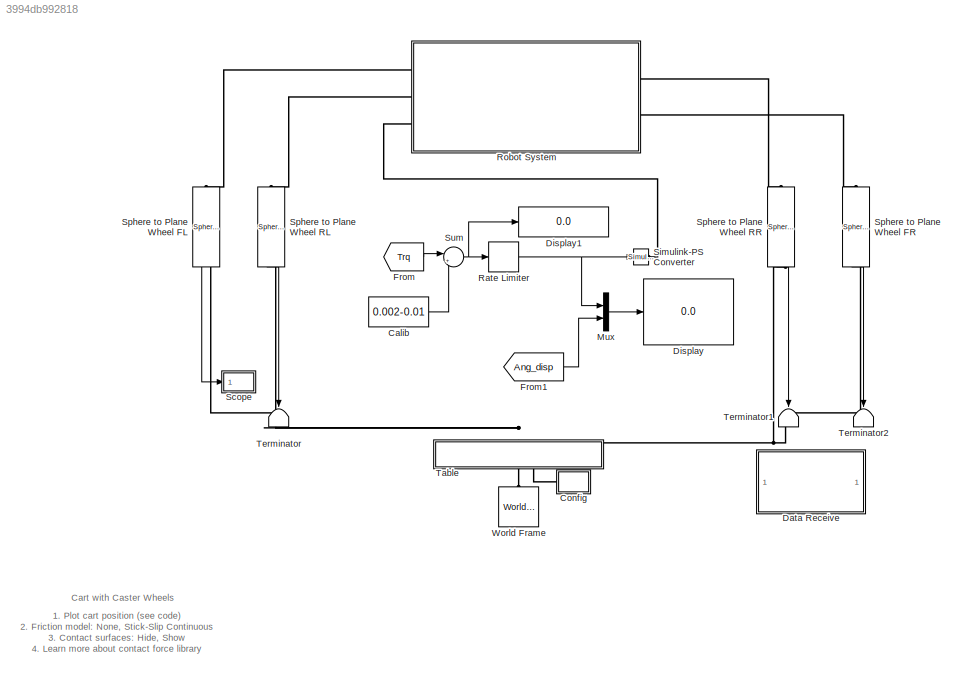
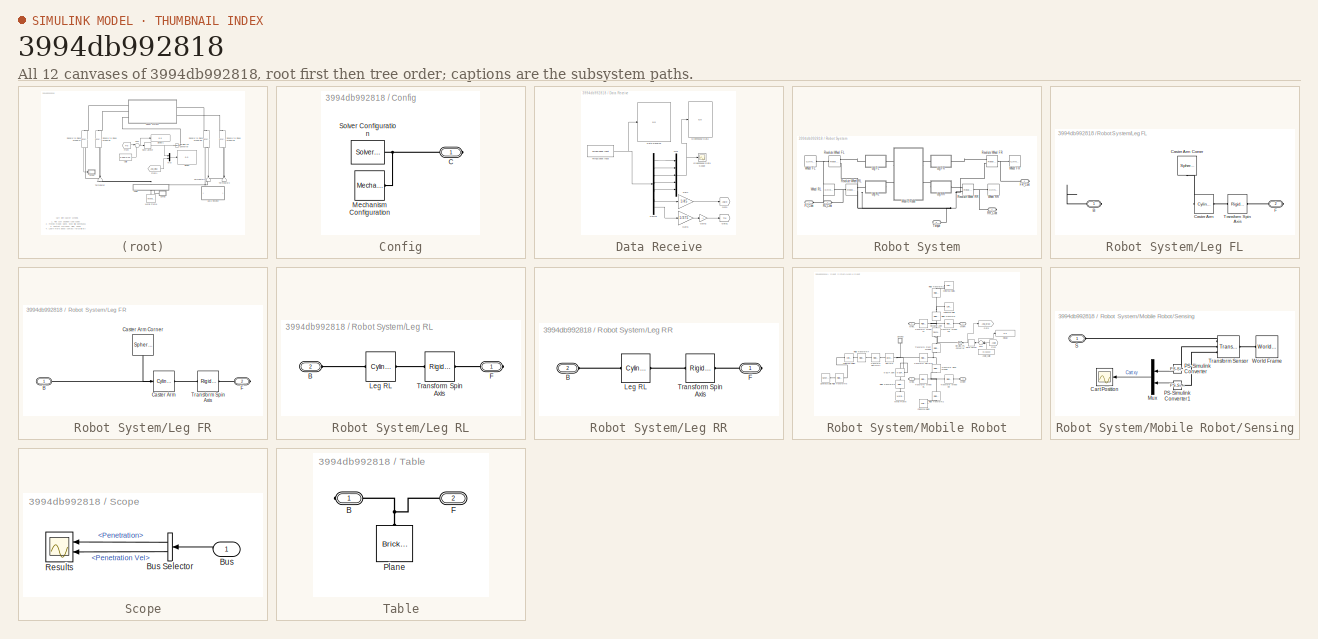
[diagram: thumbnail index - all 12 canvases of the model, root first then tree order]
MODEL slx_3994db992818
KIND model
CONFIG AbsTol = 1e-5
CONFIG EnableMultiTasking = on
CONFIG FixedStep = 1e-3
CONFIG MaxStep = 0.01
CONFIG MinStep = auto
CONFIG RelTol = 1e-4
CONFIG SampleTimeConstraint = Unconstrained
CONFIG SolverName = ode23t
CONFIG StartFcn = tic;
CONFIG StartTime = 0.0
CONFIG StopFcn = Elapsed_Sim_Time = toc;\ndisp(['Elapsed Sim Time = ' num2str(Elapsed_Sim_Time)]);\n
CONFIG StopTime = inf
WORKSPACE source: MATLAB code (in-file)
WORKSPACE code: whl.rad = 0.125;
WORKSPACE code: whl.thickness = 0.057;
WORKSPACE code: axle.length = 0.2;
WORKSPACE code: axle.radius = 0.005;
WORKSPACE code: platform.width = 0.265;
WORKSPACE code: platform.length = 0.435;
WORKSPACE code: platform.thickness = 0.28;
WORKSPACE code: platform.offset = 0.137;
WORKSPACE code: caster_axis.rad = 0.025;
WORKSPACE code: caster_axis.length = 0.2;
WORKSPACE code: bumper.rad = platform.offset+whl.rad;
WORKSPACE code: table.length = 30;
WORKSPACE code: table.thickness = 0.01;
WORKSPACE code: tableWhl.contact.k = 5000;
WORKSPACE code: tableWhl.contact.b = 700;
WORKSPACE code: steel.density = 8000; %kg/m^3
WORKSPACE code: start_pos.x = -0.2;
WORKSPACE code: start_pos.y = 1.0;
WORKSPACE l_whl_trq = [0 0 0 0.5 0 0 0 -0.5 1.0 0 0 0 -1.0 0.5 0 0 0 -0.5 -1.5 0 0 0 1.5].'*0.00005
WORKSPACE r_whl_trq = [0 0 0 2.0 0 0 0 -2.0 1.0 0 0 0 -1.0 1.0 0 0 0 -1.0 -1.5 0 0 0 1.5].'*0.00005
WORKSPACE muk = 0.7
WORKSPACE mus = 0.5
WORKSPACE vth = 1e-2  (= 0.01)
BLOCK [Constant] Calib
  Value = 0.002-0.01
BLOCK [SubSystem] Config
  Ports = [0, 0, 0, 0, 0, 0, 1]
  RequestExecContextInheritance = off
BLOCK [PMIOPort] Config/C
  Side = Right
BLOCK [Reference] Config/Mechanism Configuration  REF=sm_lib/Utilities/Mechanism
Configuration
  Ports = [0, 0, 0, 0, 0, 0, 1]
  SourceBlock = sm_lib/Utilities/Mechanism\nConfiguration
  SourceProductBaseCode = MS
  SourceType = Mechanism\nConfiguration
BLOCK [Reference] Config/Solver Configuration  REF=nesl_utility/Solver
Configuration
  Ports = [0, 0, 0, 0, 0, 0, 1]
  SourceBlock = nesl_utility/Solver\nConfiguration
  SourceProductBaseCode = SS,PW,VE
  SourceType = Solver\nConfiguration
BLOCK [SubSystem] Data Receive
  Ports = []
  RequestExecContextInheritance = off
BLOCK [Display] Data Receive/Data Receive
  Decimation = 1
  Ports = [1]
BLOCK [Demux] Data Receive/Demux
  Outputs = 7
  Ports = [1, 7]
BLOCK [Gain] Data Receive/Gain
  Gain = 1/45
BLOCK [Gain] Data Receive/Gain1
  Gain = 1/375
BLOCK [Gain] Data Receive/Gain2
  Gain = -1
BLOCK [Goto] Data Receive/Goto
  GotoTag = Angle
  TagVisibility = global
BLOCK [Goto] Data Receive/Goto1
  GotoTag = Trq
  TagVisibility = global
BLOCK [Display] Data Receive/Greenhouse Data
  Decimation = 1
  Ports = [1]
BLOCK [Scope] Data Receive/Greenhouse Data Scope
  Floating = off
  NumInputPorts = 1
  Ports = [1]
  ScopeSpecificationString = Simulink.scopes.TimeScopeBlockCfg('CurrentConfiguration', extmgr.ConfigurationSet(extmgr.Configuration('Core','General UI',true),extmgr.Configuration('Core','Source UI',true),extmgr.Configuration('Sources','WiredSimulink',true,'DataLoggingVariableName','ScopeData1'),extmgr.Configuration('Visuals','Time Domain',true,'SerializedDisplays',{struct('MinYLimReal','-9199.375','MaxYLimReal','1304.375','YL...<+1416ch>
BLOCK [Mux] Data Receive/Mux
  DisplayOption = bar
  Inputs = 5
  Ports = [5, 1]
BLOCK [Reference] Data Receive/ThingSpeak Input  REF=sldrtlib/Internet of Things/ThingSpeak Input
  Ports = [0, 1]
  SourceBlock = sldrtlib/Internet of Things/ThingSpeak Input
  SourceProductBaseCode = WT
  SourceType = Simulink Desktop Real-Time ThingSpeak Input
BLOCK [Display] Display
  Decimation = 1
  Ports = [1]
BLOCK [Display] Display1
  Decimation = 1
  Ports = [1]
BLOCK [From] From
  GotoTag = Trq
  TagVisibility = global
BLOCK [From] From1
  GotoTag = Ang_disp
  TagVisibility = global
BLOCK [Mux] Mux
  DisplayOption = bar
  Inputs = 2
  Ports = [2, 1]
BLOCK [RateLimiter] Rate Limiter
  FallingSlewLimit = -1*0.00005
  RisingSlewLimit = 1*0.00005
  SampleTimeMode = inherited
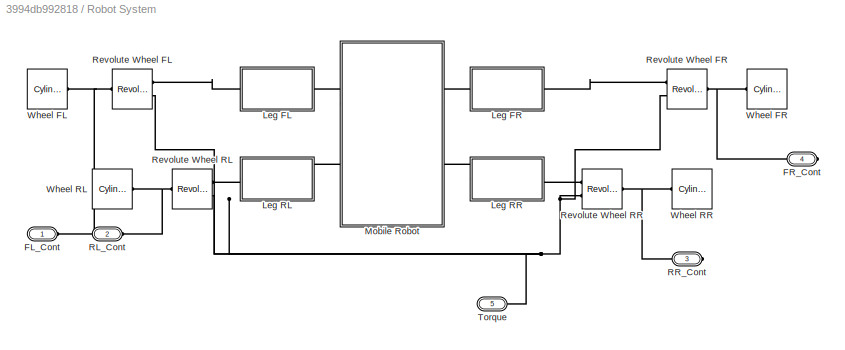
BLOCK [SubSystem] Robot System
  Ports = [0, 0, 0, 0, 0, 3, 2]
  RequestExecContextInheritance = off
BLOCK [PMIOPort] Robot System/FL_Cont
  Side = Left
BLOCK [PMIOPort] Robot System/FR_Cont
  NameLocation = top
  Port = 4
  Side = Right
BLOCK [SubSystem] Robot System/Leg FL
  Ports = [0, 0, 0, 0, 0, 1, 1]
  RequestExecContextInheritance = off
BLOCK [PMIOPort] Robot System/Leg FL/B
  Side = Left
BLOCK [Reference] Robot System/Leg FL/Caster Arm  REF=sm_lib/Body Elements/Cylindrical Solid
  Ports = [0, 0, 0, 0, 0, 1, 1]
  SourceBlock = sm_lib/Body Elements/Cylindrical Solid
  SourceProductBaseCode = MS
  SourceType = Cylindrical Solid
BLOCK [Reference] Robot System/Leg FL/Caster Arm Corner  REF=sm_lib/Body Elements/Spherical Solid
  NameLocation = left
  Ports = [0, 0, 0, 0, 0, 0, 1]
  SourceBlock = sm_lib/Body Elements/Spherical Solid
  SourceProductBaseCode = MS
  SourceType = Spherical Solid
BLOCK [PMIOPort] Robot System/Leg FL/F
  Port = 2
  Side = Right
BLOCK [Reference] Robot System/Leg FL/Transform Spin Axis  REF=sm_lib/Frames and
Transforms/Rigid
Transform
  Ports = [0, 0, 0, 0, 0, 1, 1]
  SourceBlock = sm_lib/Frames and\nTransforms/Rigid\nTransform
  SourceProductBaseCode = MS
  SourceType = Rigid\nTransform
BLOCK [SubSystem] Robot System/Leg FR
  Ports = [0, 0, 0, 0, 0, 1, 1]
  RequestExecContextInheritance = off
BLOCK [PMIOPort] Robot System/Leg FR/B
  Side = Left
BLOCK [Reference] Robot System/Leg FR/Caster Arm  REF=sm_lib/Body Elements/Cylindrical Solid
  Ports = [0, 0, 0, 0, 0, 1, 1]
  SourceBlock = sm_lib/Body Elements/Cylindrical Solid
  SourceProductBaseCode = MS
  SourceType = Cylindrical Solid
BLOCK [Reference] Robot System/Leg FR/Caster Arm Corner  REF=sm_lib/Body Elements/Spherical Solid
  NameLocation = left
  Ports = [0, 0, 0, 0, 0, 0, 1]
  SourceBlock = sm_lib/Body Elements/Spherical Solid
  SourceProductBaseCode = MS
  SourceType = Spherical Solid
BLOCK [PMIOPort] Robot System/Leg FR/F
  Port = 2
  Side = Right
BLOCK [Reference] Robot System/Leg FR/Transform Spin Axis  REF=sm_lib/Frames and
Transforms/Rigid
Transform
  Ports = [0, 0, 0, 0, 0, 1, 1]
  SourceBlock = sm_lib/Frames and\nTransforms/Rigid\nTransform
  SourceProductBaseCode = MS
  SourceType = Rigid\nTransform
BLOCK [SubSystem] Robot System/Leg RL
  Ports = [0, 0, 0, 0, 0, 1, 1]
  RequestExecContextInheritance = off
BLOCK [PMIOPort] Robot System/Leg RL/B
  Port = 2
  Side = Left
BLOCK [PMIOPort] Robot System/Leg RL/F
  Side = Right
BLOCK [Reference] Robot System/Leg RL/Leg RL  REF=sm_lib/Body Elements/Cylindrical Solid
  Ports = [0, 0, 0, 0, 0, 1, 1]
  SourceBlock = sm_lib/Body Elements/Cylindrical Solid
  SourceProductBaseCode = MS
  SourceType = Cylindrical Solid
BLOCK [Reference] Robot System/Leg RL/Transform Spin Axis  REF=sm_lib/Frames and
Transforms/Rigid
Transform
  Ports = [0, 0, 0, 0, 0, 1, 1]
  SourceBlock = sm_lib/Frames and\nTransforms/Rigid\nTransform
  SourceProductBaseCode = MS
  SourceType = Rigid\nTransform
BLOCK [SubSystem] Robot System/Leg RR
  Ports = [0, 0, 0, 0, 0, 1, 1]
  RequestExecContextInheritance = off
BLOCK [PMIOPort] Robot System/Leg RR/B
  Port = 2
  Side = Left
BLOCK [PMIOPort] Robot System/Leg RR/F
  Side = Right
BLOCK [Reference] Robot System/Leg RR/Leg RL  REF=sm_lib/Body Elements/Cylindrical Solid
  Ports = [0, 0, 0, 0, 0, 1, 1]
  SourceBlock = sm_lib/Body Elements/Cylindrical Solid
  SourceProductBaseCode = MS
  SourceType = Cylindrical Solid
BLOCK [Reference] Robot System/Leg RR/Transform Spin Axis  REF=sm_lib/Frames and
Transforms/Rigid
Transform
  Ports = [0, 0, 0, 0, 0, 1, 1]
  SourceBlock = sm_lib/Frames and\nTransforms/Rigid\nTransform
  SourceProductBaseCode = MS
  SourceType = Rigid\nTransform
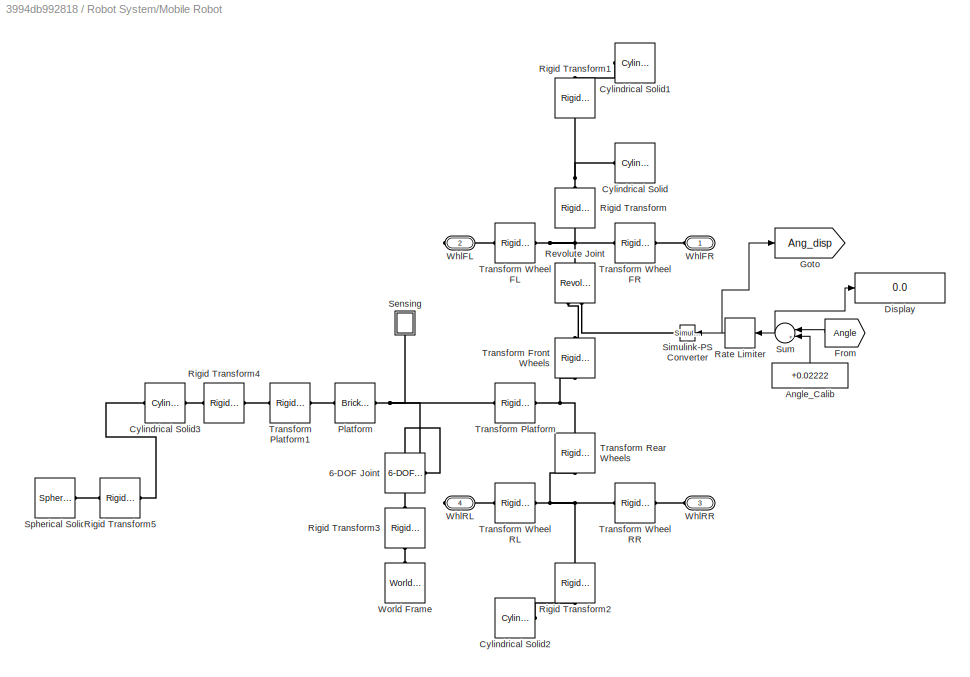
BLOCK [SubSystem] Robot System/Mobile Robot
  Ports = [0, 0, 0, 0, 0, 2, 2]
  RequestExecContextInheritance = off
  Tag = CustomStyle
BLOCK [Reference] Robot System/Mobile Robot/6-DOF Joint  REF=sm_lib/Joints/6-DOF Joint
  NameLocation = top
  Ports = [0, 0, 0, 0, 0, 1, 1]
  SourceBlock = sm_lib/Joints/6-DOF Joint
  SourceProductBaseCode = MS
  SourceType = 6-DOF Joint
BLOCK [Constant] Robot System/Mobile Robot/Angle_Calib
  NameLocation = right
  Value = +0.02222
BLOCK [Reference] Robot System/Mobile Robot/Cylindrical Solid  REF=sm_lib/Body Elements/Cylindrical Solid
  NameLocation = top
  Ports = [0, 0, 0, 0, 0, 0, 1]
  SourceBlock = sm_lib/Body Elements/Cylindrical Solid
  SourceProductBaseCode = MS
  SourceType = Cylindrical Solid
BLOCK [Reference] Robot System/Mobile Robot/Cylindrical Solid1  REF=sm_lib/Body Elements/Cylindrical Solid
  NameLocation = top
  Ports = [0, 0, 0, 0, 0, 0, 1]
  SourceBlock = sm_lib/Body Elements/Cylindrical Solid
  SourceProductBaseCode = MS
  SourceType = Cylindrical Solid
BLOCK [Reference] Robot System/Mobile Robot/Cylindrical Solid2  REF=sm_lib/Body Elements/Cylindrical Solid
  Ports = [0, 0, 0, 0, 0, 0, 1]
  SourceBlock = sm_lib/Body Elements/Cylindrical Solid
  SourceProductBaseCode = MS
  SourceType = Cylindrical Solid
BLOCK [Reference] Robot System/Mobile Robot/Cylindrical Solid3  REF=sm_lib/Body Elements/Cylindrical Solid
  Ports = [0, 0, 0, 0, 0, 1, 1]
  SourceBlock = sm_lib/Body Elements/Cylindrical Solid
  SourceProductBaseCode = MS
  SourceType = Cylindrical Solid
BLOCK [Display] Robot System/Mobile Robot/Display
  Decimation = 1
  Ports = [1]
BLOCK [From] Robot System/Mobile Robot/From
  GotoTag = Angle
  NameLocation = top
  TagVisibility = global
BLOCK [Goto] Robot System/Mobile Robot/Goto
  GotoTag = Ang_disp
  TagVisibility = global
BLOCK [Reference] Robot System/Mobile Robot/Platform  REF=sm_lib/Body Elements/Brick Solid
  Ports = [0, 0, 0, 0, 0, 1, 1]
  SourceBlock = sm_lib/Body Elements/Brick Solid
  SourceProductBaseCode = MS
  SourceType = Brick Solid
BLOCK [RateLimiter] Robot System/Mobile Robot/Rate Limiter
  NameLocation = top
  SampleTimeMode = inherited
BLOCK [Reference] Robot System/Mobile Robot/Revolute Joint  REF=sm_lib/Joints/Revolute Joint
  NameLocation = right
  Ports = [0, 0, 0, 0, 0, 2, 1]
  SourceBlock = sm_lib/Joints/Revolute Joint
  SourceProductBaseCode = MS
  SourceType = Revolute Joint
BLOCK [Reference] Robot System/Mobile Robot/Rigid Transform  REF=sm_lib/Frames and
Transforms/Rigid
Transform
  NameLocation = right
  Ports = [0, 0, 0, 0, 0, 1, 1]
  SourceBlock = sm_lib/Frames and\nTransforms/Rigid\nTransform
  SourceProductBaseCode = MS
  SourceType = Rigid\nTransform
BLOCK [Reference] Robot System/Mobile Robot/Rigid Transform1  REF=sm_lib/Frames and
Transforms/Rigid
Transform
  NameLocation = right
  Ports = [0, 0, 0, 0, 0, 1, 1]
  SourceBlock = sm_lib/Frames and\nTransforms/Rigid\nTransform
  SourceProductBaseCode = MS
  SourceType = Rigid\nTransform
BLOCK [Reference] Robot System/Mobile Robot/Rigid Transform2  REF=sm_lib/Frames and
Transforms/Rigid
Transform
  NameLocation = left
  Ports = [0, 0, 0, 0, 0, 1, 1]
  SourceBlock = sm_lib/Frames and\nTransforms/Rigid\nTransform
  SourceProductBaseCode = MS
  SourceType = Rigid\nTransform
BLOCK [Reference] Robot System/Mobile Robot/Rigid Transform3  REF=sm_lib/Frames and
Transforms/Rigid
Transform
  NameLocation = right
  Ports = [0, 0, 0, 0, 0, 1, 1]
  SourceBlock = sm_lib/Frames and\nTransforms/Rigid\nTransform
  SourceProductBaseCode = MS
  SourceType = Rigid\nTransform
BLOCK [Reference] Robot System/Mobile Robot/Rigid Transform4  REF=sm_lib/Frames and
Transforms/Rigid
Transform
  NameLocation = top
  Ports = [0, 0, 0, 0, 0, 1, 1]
  SourceBlock = sm_lib/Frames and\nTransforms/Rigid\nTransform
  SourceProductBaseCode = MS
  SourceType = Rigid\nTransform
BLOCK [Reference] Robot System/Mobile Robot/Rigid Transform5  REF=sm_lib/Frames and
Transforms/Rigid
Transform
  NameLocation = top
  Ports = [0, 0, 0, 0, 0, 1, 1]
  SourceBlock = sm_lib/Frames and\nTransforms/Rigid\nTransform
  SourceProductBaseCode = MS
  SourceType = Rigid\nTransform
BLOCK [SubSystem] Robot System/Mobile Robot/Sensing
  NameLocation = right
  Ports = [0, 0, 0, 0, 0, 1]
  RequestExecContextInheritance = off
BLOCK [Scope] Robot System/Mobile Robot/Sensing/Cart Position
  Floating = off
  NumInputPorts = 1
  Ports = [1]
  ScopeSpecificationString = Simulink.scopes.TimeScopeBlockCfg('CurrentConfiguration', extmgr.ConfigurationSet(extmgr.Configuration('Core','General UI',true),extmgr.Configuration('Core','Source UI',true),extmgr.Configuration('Sources','WiredSimulink',true,'DataLoggingVariableName','ScopeData1','DataLoggingSaveFormat','Array','DataLoggingDecimation','1','DataLoggingDecimateData',true),extmgr.Configuration('Visuals','Time Domai...<+1611ch>
BLOCK [Mux] Robot System/Mobile Robot/Sensing/Mux
  DisplayOption = bar
  Inputs = 2
  NameLocation = top
  Ports = [2, 1]
BLOCK [Reference] Robot System/Mobile Robot/Sensing/PS-Simulink Converter  REF=nesl_utility/PS-Simulink
Converter
  NameLocation = top
  Ports = [0, 1, 0, 0, 0, 1]
  SourceBlock = nesl_utility/PS-Simulink\nConverter
  SourceProductBaseCode = SS,PW,VE
  SourceType = PS-Simulink\nConverter
BLOCK [Reference] Robot System/Mobile Robot/Sensing/PS-Simulink Converter1  REF=nesl_utility/PS-Simulink
Converter
  NameLocation = top
  Ports = [0, 1, 0, 0, 0, 1]
  SourceBlock = nesl_utility/PS-Simulink\nConverter
  SourceProductBaseCode = SS,PW,VE
  SourceType = PS-Simulink\nConverter
BLOCK [PMIOPort] Robot System/Mobile Robot/Sensing/S
  Side = Left
BLOCK [Reference] Robot System/Mobile Robot/Sensing/Transform Sensor  REF=sm_lib/Frames and
Transforms/Transform
Sensor
  Ports = [0, 0, 0, 0, 0, 1, 3]
  SourceBlock = sm_lib/Frames and\nTransforms/Transform\nSensor
  SourceProductBaseCode = MS
  SourceType = Transform\nSensor
BLOCK [Reference] Robot System/Mobile Robot/Sensing/World Frame  REF=sm_lib/Frames and
Transforms/World Frame
  Ports = [0, 0, 0, 0, 0, 0, 1]
  SourceBlock = sm_lib/Frames and\nTransforms/World Frame
  SourceProductBaseCode = MS
  SourceType = World Frame
BLOCK [Reference] Robot System/Mobile Robot/Simulink-PS Converter  REF=nesl_utility/Simulink-PS
Converter
  NameLocation = top
  Ports = [1, 0, 0, 0, 0, 0, 1]
  SourceBlock = nesl_utility/Simulink-PS\nConverter
  SourceProductBaseCode = SS,PW,VE
  SourceType = Simulink-PS\nConverter
BLOCK [Reference] Robot System/Mobile Robot/Spherical Solid  REF=sm_lib/Body Elements/Spherical Solid
  Ports = [0, 0, 0, 0, 0, 0, 1]
  SourceBlock = sm_lib/Body Elements/Spherical Solid
  SourceProductBaseCode = MS
  SourceType = Spherical Solid
BLOCK [Sum] Robot System/Mobile Robot/Sum
  Inputs = |++
  NameLocation = top
  Ports = [2, 1]
BLOCK [Reference] Robot System/Mobile Robot/Transform Front Wheels  REF=sm_lib/Frames and
Transforms/Rigid
Transform
  NameLocation = right
  Ports = [0, 0, 0, 0, 0, 1, 1]
  SourceBlock = sm_lib/Frames and\nTransforms/Rigid\nTransform
  SourceProductBaseCode = MS
  SourceType = Rigid\nTransform
BLOCK [Reference] Robot System/Mobile Robot/Transform Platform  REF=sm_lib/Frames and
Transforms/Rigid
Transform
  Ports = [0, 0, 0, 0, 0, 1, 1]
  SourceBlock = sm_lib/Frames and\nTransforms/Rigid\nTransform
  SourceProductBaseCode = MS
  SourceType = Rigid\nTransform
BLOCK [Reference] Robot System/Mobile Robot/Transform Platform1  REF=sm_lib/Frames and
Transforms/Rigid
Transform
  Ports = [0, 0, 0, 0, 0, 1, 1]
  SourceBlock = sm_lib/Frames and\nTransforms/Rigid\nTransform
  SourceProductBaseCode = MS
  SourceType = Rigid\nTransform
BLOCK [Reference] Robot System/Mobile Robot/Transform Rear Wheels  REF=sm_lib/Frames and
Transforms/Rigid
Transform
  NameLocation = right
  Ports = [0, 0, 0, 0, 0, 1, 1]
  SourceBlock = sm_lib/Frames and\nTransforms/Rigid\nTransform
  SourceProductBaseCode = MS
  SourceType = Rigid\nTransform
BLOCK [Reference] Robot System/Mobile Robot/Transform Wheel FL  REF=sm_lib/Frames and
Transforms/Rigid
Transform
  Ports = [0, 0, 0, 0, 0, 1, 1]
  SourceBlock = sm_lib/Frames and\nTransforms/Rigid\nTransform
  SourceProductBaseCode = MS
  SourceType = Rigid\nTransform
BLOCK [Reference] Robot System/Mobile Robot/Transform Wheel FR  REF=sm_lib/Frames and
Transforms/Rigid
Transform
  Ports = [0, 0, 0, 0, 0, 1, 1]
  SourceBlock = sm_lib/Frames and\nTransforms/Rigid\nTransform
  SourceProductBaseCode = MS
  SourceType = Rigid\nTransform
BLOCK [Reference] Robot System/Mobile Robot/Transform Wheel RL  REF=sm_lib/Frames and
Transforms/Rigid
Transform
  Ports = [0, 0, 0, 0, 0, 1, 1]
  SourceBlock = sm_lib/Frames and\nTransforms/Rigid\nTransform
  SourceProductBaseCode = MS
  SourceType = Rigid\nTransform
BLOCK [Reference] Robot System/Mobile Robot/Transform Wheel RR  REF=sm_lib/Frames and
Transforms/Rigid
Transform
  Ports = [0, 0, 0, 0, 0, 1, 1]
  SourceBlock = sm_lib/Frames and\nTransforms/Rigid\nTransform
  SourceProductBaseCode = MS
  SourceType = Rigid\nTransform
BLOCK [PMIOPort] Robot System/Mobile Robot/WhlFL
  Port = 2
  Side = Right
BLOCK [PMIOPort] Robot System/Mobile Robot/WhlFR
  Side = Left
BLOCK [PMIOPort] Robot System/Mobile Robot/WhlRL
  Port = 4
  Side = Right
BLOCK [PMIOPort] Robot System/Mobile Robot/WhlRR
  Port = 3
  Side = Left
BLOCK [Reference] Robot System/Mobile Robot/World Frame  REF=sm_lib/Frames and
Transforms/World Frame
  NameLocation = left
  Ports = [0, 0, 0, 0, 0, 0, 1]
  SourceBlock = sm_lib/Frames and\nTransforms/World Frame
  SourceProductBaseCode = MS
  SourceType = World Frame
BLOCK [PMIOPort] Robot System/RL_Cont
  Port = 2
  Side = Left
BLOCK [PMIOPort] Robot System/RR_Cont
  NameLocation = top
  Port = 3
  Side = Right
BLOCK [Reference] Robot System/Revolute Wheel FL  REF=sm_lib/Joints/Revolute Joint
  Ports = [0, 0, 0, 0, 0, 2, 1]
  SourceBlock = sm_lib/Joints/Revolute Joint
  SourceProductBaseCode = MS
  SourceType = Revolute Joint
BLOCK [Reference] Robot System/Revolute Wheel FR  REF=sm_lib/Joints/Revolute Joint
  Ports = [0, 0, 0, 0, 0, 2, 1]
  SourceBlock = sm_lib/Joints/Revolute Joint
  SourceProductBaseCode = MS
  SourceType = Revolute Joint
BLOCK [Reference] Robot System/Revolute Wheel RL  REF=sm_lib/Joints/Revolute Joint
  Ports = [0, 0, 0, 0, 0, 2, 1]
  SourceBlock = sm_lib/Joints/Revolute Joint
  SourceProductBaseCode = MS
  SourceType = Revolute Joint
BLOCK [Reference] Robot System/Revolute Wheel RR  REF=sm_lib/Joints/Revolute Joint
  Ports = [0, 0, 0, 0, 0, 2, 1]
  SourceBlock = sm_lib/Joints/Revolute Joint
  SourceProductBaseCode = MS
  SourceType = Revolute Joint
BLOCK [PMIOPort] Robot System/Torque
  Port = 5
  Side = Left
BLOCK [Reference] Robot System/Wheel FL  REF=Parts_Lib/Cylinder
  Ports = [0, 0, 0, 0, 0, 1]
  SourceBlock = Parts_Lib/Cylinder
  SourceType = Solid Cylinder with Markings
  Tag = CustomStyle
BLOCK [Reference] Robot System/Wheel FR  REF=Parts_Lib/Cylinder
  Ports = [0, 0, 0, 0, 0, 1]
  SourceBlock = Parts_Lib/Cylinder
  SourceType = Solid Cylinder with Markings
  Tag = CustomStyle
BLOCK [Reference] Robot System/Wheel RL  REF=Parts_Lib/Cylinder
  Ports = [0, 0, 0, 0, 0, 1]
  SourceBlock = Parts_Lib/Cylinder
  SourceType = Solid Cylinder with Markings
  Tag = CustomStyle
BLOCK [Reference] Robot System/Wheel RR  REF=Parts_Lib/Cylinder
  Ports = [0, 0, 0, 0, 0, 1]
  SourceBlock = Parts_Lib/Cylinder
  SourceType = Solid Cylinder with Markings
  Tag = CustomStyle
BLOCK [SubSystem] Scope
  NameLocation = top
  Ports = [1]
  RequestExecContextInheritance = off
BLOCK [Inport] Scope/Bus
BLOCK [BusSelector] Scope/Bus Selector
  NameLocation = top
  OutputSignals = Penetration,Penetration Vel
  Ports = [1, 2]
BLOCK [Scope] Scope/Results
  Floating = off
  NameLocation = top
  NumInputPorts = 2
  Ports = [2]
  ScopeSpecificationString = Simulink.scopes.TimeScopeBlockCfg('CurrentConfiguration', extmgr.ConfigurationSet(extmgr.Configuration('Core','General UI',true,'FigureColor',[0.501960784313725 0.501960784313725 0.501960784313725]),extmgr.Configuration('Core','Source UI',true),extmgr.Configuration('Sources','WiredSimulink',true,'DataLoggingVariableName','ScopeData1','DataLoggingSaveFormat','StructureWithTime','DataLoggingDecimati...<+3787ch>
  Tag = PublishScope
BLOCK [Reference] Simulink-PS Converter  REF=nesl_utility/Simulink-PS
Converter
  Ports = [1, 0, 0, 0, 0, 0, 1]
  SourceBlock = nesl_utility/Simulink-PS\nConverter
  SourceProductBaseCode = SS,PW,VE
  SourceType = Simulink-PS\nConverter
BLOCK [Reference] Sphere to Plane Wheel FL  REF=Contact_Forces_Lib/3D/Sphere to Plane Force
  NameLocation = left
  Ports = [0, 1, 0, 0, 0, 1, 1]
  SourceBlock = Contact_Forces_Lib/3D/Sphere to Plane Force
  SourceProductName = Simscape Multibody Contact Forces Library
  SourceType = Sphere to Plane Force
BLOCK [Reference] Sphere to Plane Wheel FR  REF=Contact_Forces_Lib/3D/Sphere to Plane Force
  NameLocation = right
  Ports = [0, 1, 0, 0, 0, 1, 1]
  SourceBlock = Contact_Forces_Lib/3D/Sphere to Plane Force
  SourceProductName = Simscape Multibody Contact Forces Library
  SourceType = Sphere to Plane Force
BLOCK [Reference] Sphere to Plane Wheel RL  REF=Contact_Forces_Lib/3D/Sphere to Plane Force
  NameLocation = right
  Ports = [0, 1, 0, 0, 0, 1, 1]
  SourceBlock = Contact_Forces_Lib/3D/Sphere to Plane Force
  SourceProductName = Simscape Multibody Contact Forces Library
  SourceType = Sphere to Plane Force
BLOCK [Reference] Sphere to Plane Wheel RR  REF=Contact_Forces_Lib/3D/Sphere to Plane Force
  NameLocation = left
  Ports = [0, 1, 0, 0, 0, 1, 1]
  SourceBlock = Contact_Forces_Lib/3D/Sphere to Plane Force
  SourceProductName = Simscape Multibody Contact Forces Library
  SourceType = Sphere to Plane Force
BLOCK [Sum] Sum
  Inputs = |++
  Ports = [2, 1]
BLOCK [SubSystem] Table
  NameLocation = right
  Ports = [0, 0, 0, 0, 0, 1, 1]
  RequestExecContextInheritance = off
  Tag = CustomStyle
BLOCK [PMIOPort] Table/B
  NameLocation = top
  Side = Right
BLOCK [PMIOPort] Table/F
  NameLocation = top
  Port = 2
  Side = Left
BLOCK [Reference] Table/Plane  REF=sm_lib/Body Elements/Brick Solid
  NameLocation = right
  Ports = [0, 0, 0, 0, 0, 1, 1]
  SourceBlock = sm_lib/Body Elements/Brick Solid
  SourceProductBaseCode = MS
  SourceType = Brick Solid
BLOCK [Terminator] Terminator
  NameLocation = right
BLOCK [Terminator] Terminator1
  NameLocation = right
BLOCK [Terminator] Terminator2
  NameLocation = left
BLOCK [Reference] World Frame  REF=sm_lib/Frames and
Transforms/World Frame
  NameLocation = left
  Ports = [0, 0, 0, 0, 0, 0, 1]
  SourceBlock = sm_lib/Frames and\nTransforms/World Frame
  SourceProductBaseCode = MS
  SourceType = World Frame
ANNOTATION (root): 1. Plot cart position ( see code ) 2. Friction model: None , Stick-Slip Continuous 3. Contact surfaces: Hide , Show 4. Learn more about contact force library
ANNOTATION (root): Cart with Caster Wheels
LINE Calib:1 -> Sum:2
LINE Data Receive/Demux:1 -> Data Receive/Mux:1
LINE Data Receive/Demux:2 -> Data Receive/Mux:2
LINE Data Receive/Demux:3 -> Data Receive/Mux:3
LINE Data Receive/Demux:4 -> Data Receive/Mux:4
LINE Data Receive/Demux:5 -> Data Receive/Mux:5
LINE Data Receive/Demux:6 -> Data Receive/Gain:1
LINE Data Receive/Demux:7 -> Data Receive/Gain1:1
LINE Data Receive/Gain1:1 -> Data Receive/Gain2:1
LINE Data Receive/Gain2:1 -> Data Receive/Goto1:1
LINE Data Receive/Gain:1 -> Data Receive/Goto:1
NET Data Receive/Mux:1 -> Data Receive/Greenhouse Data Scope:1, Data Receive/Greenhouse Data:1
NET Data Receive/ThingSpeak Input:1 -> Data Receive/Data Receive:1, Data Receive/Demux:1
LINE From1:1 -> Mux:2
LINE From:1 -> Sum:1
LINE Mux:1 -> Display:1
NET Rate Limiter:1 -> Mux:1, Simulink-PS Converter:1
LINE Robot System/Mobile Robot/Angle_Calib:1 -> Robot System/Mobile Robot/Sum:2
LINE Robot System/Mobile Robot/From:1 -> Robot System/Mobile Robot/Sum:1
NET Robot System/Mobile Robot/Rate Limiter:1 -> Robot System/Mobile Robot/Goto:1, Robot System/Mobile Robot/Simulink-PS Converter:1
LINE Robot System/Mobile Robot/Sensing/Mux:1 -> Robot System/Mobile Robot/Sensing/Cart Position:1
LINE Robot System/Mobile Robot/Sensing/PS-Simulink Converter1:1 -> Robot System/Mobile Robot/Sensing/Mux:2
LINE Robot System/Mobile Robot/Sensing/PS-Simulink Converter:1 -> Robot System/Mobile Robot/Sensing/Mux:1
NET Robot System/Mobile Robot/Sum:1 -> Robot System/Mobile Robot/Display:1, Robot System/Mobile Robot/Rate Limiter:1
LINE Scope/Bus Selector:1 -> Scope/Results:1
LINE Scope/Bus Selector:2 -> Scope/Results:2
LINE Scope/Bus:1 -> Scope/Bus Selector:1
LINE Sphere to Plane Wheel FL:1 -> Scope:1
LINE Sphere to Plane Wheel FR:1 -> Terminator2:1
LINE Sphere to Plane Wheel RL:1 -> Terminator:1
LINE Sphere to Plane Wheel RR:1 -> Terminator1:1
NET Sum:1 -> Display1:1, Rate Limiter:1
PNET net1: Config/C:RConn1 -- Config/Mechanism Configuration:RConn1 -- Config/Solver Configuration:RConn1
PNET net2: Config:RConn1 -- Table:RConn1 -- World Frame:RConn1
PNET net3: Robot System/FL_Cont:RConn1 -- Robot System/Revolute Wheel FL:RConn1 -- Robot System/Wheel FL:LConn1
PNET net4: Robot System/FR_Cont:RConn1 -- Robot System/Revolute Wheel FR:RConn1 -- Robot System/Wheel FR:LConn1
PNET net5: Robot System/Leg FL/B:RConn1 -- Robot System/Leg FL/Caster Arm Corner:RConn1 -- Robot System/Leg FL/Caster Arm:LConn1
PLINE Robot System/Leg FL/Caster Arm:RConn1 -- Robot System/Leg FL/Transform Spin Axis:LConn1
PLINE Robot System/Leg FL/F:RConn1 -- Robot System/Leg FL/Transform Spin Axis:RConn1
PLINE Robot System/Leg FL:LConn1 -- Robot System/Mobile Robot:RConn1
PLINE Robot System/Leg FL:RConn1 -- Robot System/Revolute Wheel FL:LConn1
PNET net6: Robot System/Leg FR/B:RConn1 -- Robot System/Leg FR/Caster Arm Corner:RConn1 -- Robot System/Leg FR/Caster Arm:LConn1
PLINE Robot System/Leg FR/Caster Arm:RConn1 -- Robot System/Leg FR/Transform Spin Axis:LConn1
PLINE Robot System/Leg FR/F:RConn1 -- Robot System/Leg FR/Transform Spin Axis:RConn1
PLINE Robot System/Leg FR:LConn1 -- Robot System/Mobile Robot:LConn1
PLINE Robot System/Leg FR:RConn1 -- Robot System/Revolute Wheel FR:LConn1
PLINE Robot System/Leg RL/B:RConn1 -- Robot System/Leg RL/Leg RL:LConn1
PLINE Robot System/Leg RL/F:RConn1 -- Robot System/Leg RL/Transform Spin Axis:RConn1
PLINE Robot System/Leg RL/Leg RL:RConn1 -- Robot System/Leg RL/Transform Spin Axis:LConn1
PLINE Robot System/Leg RL:LConn1 -- Robot System/Mobile Robot:RConn2
PLINE Robot System/Leg RL:RConn1 -- Robot System/Revolute Wheel RL:LConn1
PLINE Robot System/Leg RR/B:RConn1 -- Robot System/Leg RR/Leg RL:LConn1
PLINE Robot System/Leg RR/F:RConn1 -- Robot System/Leg RR/Transform Spin Axis:RConn1
PLINE Robot System/Leg RR/Leg RL:RConn1 -- Robot System/Leg RR/Transform Spin Axis:LConn1
PLINE Robot System/Leg RR:LConn1 -- Robot System/Mobile Robot:LConn2
PLINE Robot System/Leg RR:RConn1 -- Robot System/Revolute Wheel RR:LConn1
PLINE Robot System/Mobile Robot/6-DOF Joint:LConn1 -- Robot System/Mobile Robot/Rigid Transform3:RConn1
PNET net7: Robot System/Mobile Robot/6-DOF Joint:RConn1 -- Robot System/Mobile Robot/Platform:RConn1 -- Robot System/Mobile Robot/Sensing:LConn1 -- Robot System/Mobile Robot/Transform Platform:LConn1
PLINE Robot System/Mobile Robot/Cylindrical Solid1:RConn1 -- Robot System/Mobile Robot/Rigid Transform1:RConn1
PLINE Robot System/Mobile Robot/Cylindrical Solid2:RConn1 -- Robot System/Mobile Robot/Rigid Transform2:RConn1
PLINE Robot System/Mobile Robot/Cylindrical Solid3:LConn1 -- Robot System/Mobile Robot/Rigid Transform5:LConn1
PLINE Robot System/Mobile Robot/Cylindrical Solid3:RConn1 -- Robot System/Mobile Robot/Rigid Transform4:RConn1
PNET net8: Robot System/Mobile Robot/Cylindrical Solid:RConn1 -- Robot System/Mobile Robot/Rigid Transform1:LConn1 -- Robot System/Mobile Robot/Rigid Transform:RConn1
PLINE Robot System/Mobile Robot/Platform:LConn1 -- Robot System/Mobile Robot/Transform Platform1:LConn1
PLINE Robot System/Mobile Robot/Revolute Joint:LConn1 -- Robot System/Mobile Robot/Transform Front Wheels:RConn1
PLINE Robot System/Mobile Robot/Revolute Joint:LConn2 -- Robot System/Mobile Robot/Simulink-PS Converter:RConn1
PNET net9: Robot System/Mobile Robot/Revolute Joint:RConn1 -- Robot System/Mobile Robot/Rigid Transform:LConn1 -- Robot System/Mobile Robot/Transform Wheel FL:LConn1 -- Robot System/Mobile Robot/Transform Wheel FR:RConn1
PNET net10: Robot System/Mobile Robot/Rigid Transform2:LConn1 -- Robot System/Mobile Robot/Transform Rear Wheels:LConn1 -- Robot System/Mobile Robot/Transform Wheel RL:LConn1 -- Robot System/Mobile Robot/Transform Wheel RR:RConn1
PLINE Robot System/Mobile Robot/Rigid Transform3:LConn1 -- Robot System/Mobile Robot/World Frame:RConn1
PLINE Robot System/Mobile Robot/Rigid Transform4:LConn1 -- Robot System/Mobile Robot/Transform Platform1:RConn1
PLINE Robot System/Mobile Robot/Rigid Transform5:RConn1 -- Robot System/Mobile Robot/Spherical Solid:RConn1
PLINE Robot System/Mobile Robot/Sensing/PS-Simulink Converter1:LConn1 -- Robot System/Mobile Robot/Sensing/Transform Sensor:RConn3
PLINE Robot System/Mobile Robot/Sensing/PS-Simulink Converter:LConn1 -- Robot System/Mobile Robot/Sensing/Transform Sensor:RConn2
PLINE Robot System/Mobile Robot/Sensing/S:RConn1 -- Robot System/Mobile Robot/Sensing/Transform Sensor:RConn1
PLINE Robot System/Mobile Robot/Sensing/Transform Sensor:LConn1 -- Robot System/Mobile Robot/Sensing/World Frame:RConn1
PNET net11: Robot System/Mobile Robot/Transform Front Wheels:LConn1 -- Robot System/Mobile Robot/Transform Platform:RConn1 -- Robot System/Mobile Robot/Transform Rear Wheels:RConn1
PLINE Robot System/Mobile Robot/Transform Wheel FL:RConn1 -- Robot System/Mobile Robot/WhlFL:RConn1
PLINE Robot System/Mobile Robot/Transform Wheel FR:LConn1 -- Robot System/Mobile Robot/WhlFR:RConn1
PLINE Robot System/Mobile Robot/Transform Wheel RL:RConn1 -- Robot System/Mobile Robot/WhlRL:RConn1
PLINE Robot System/Mobile Robot/Transform Wheel RR:LConn1 -- Robot System/Mobile Robot/WhlRR:RConn1
PNET net12: Robot System/RL_Cont:RConn1 -- Robot System/Revolute Wheel RL:RConn1 -- Robot System/Wheel RL:LConn1
PNET net13: Robot System/RR_Cont:RConn1 -- Robot System/Revolute Wheel RR:RConn1 -- Robot System/Wheel RR:LConn1
PNET net14: Robot System/Revolute Wheel FL:LConn2 -- Robot System/Revolute Wheel FR:LConn2 -- Robot System/Revolute Wheel RL:LConn2 -- Robot System/Revolute Wheel RR:LConn2 -- Robot System/Torque:RConn1
PLINE Robot System:LConn1 -- Sphere to Plane Wheel FL:LConn1
PLINE Robot System:LConn2 -- Sphere to Plane Wheel RL:LConn1
PLINE Robot System:LConn3 -- Simulink-PS Converter:RConn1
PLINE Robot System:RConn1 -- Sphere to Plane Wheel RR:LConn1
PLINE Robot System:RConn2 -- Sphere to Plane Wheel FR:LConn1
PNET net15: Sphere to Plane Wheel FL:RConn1 -- Sphere to Plane Wheel FR:RConn1 -- Sphere to Plane Wheel RL:RConn1 -- Sphere to Plane Wheel RR:RConn1 -- Table:LConn1
PNET net16: Table/B:RConn1 -- Table/F:RConn1 -- Table/Plane:RConn1
note: NET lines group one-source signal fan-out (src -> all destinations, sorted); 1:1 wires keep LINE; PNET lines group multi-terminal physical nets as a canonical sorted terminal list (undirected conserving connections); 2-terminal nets keep the pairwise PLINE form
